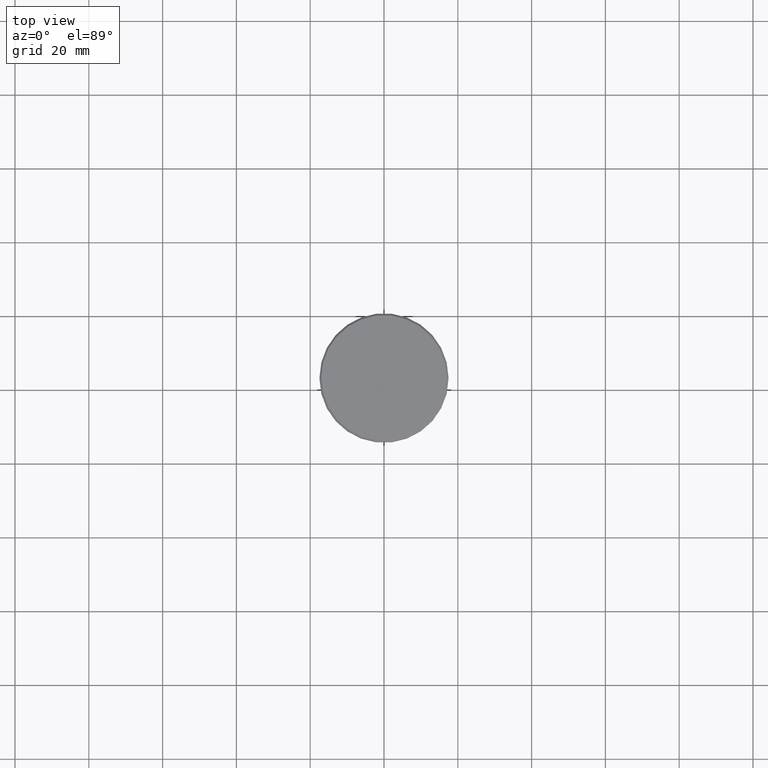
[diagram: clean part render]
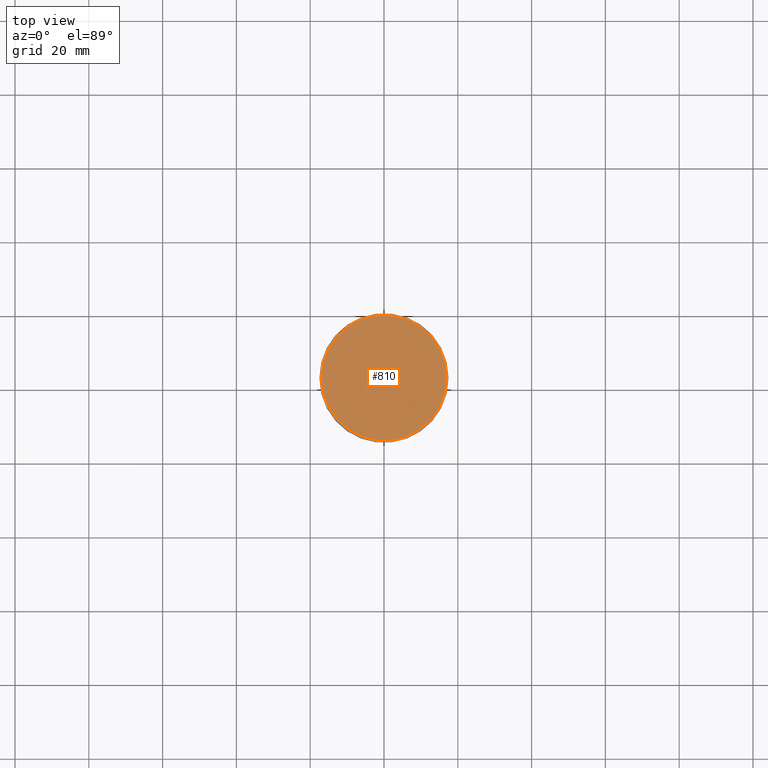
[diagram: same view with one face highlighted and labeled with its STEP entity id]
A machine part, top view. The second image highlights one B-rep face of the part: STEP entity #810.
In plain terms, the highlighted planar face has unit normal (0, -0, 1).
Its self-contained STEP definition (entity closure, byte-faithful):
#23 = DIRECTION ( 'NONE',  ( -0.000000000000000000, -0.000000000000000000, 1.000000000000000000 ) ) ;
#44 = DIRECTION ( 'NONE',  ( 1.000000000000000000, 0.000000000000000000, 0.000000000000000000 ) ) ;
#107 = DIRECTION ( 'NONE',  ( -0.000000000000000000, -0.000000000000000000, 1.000000000000000000 ) ) ;
#123 = CARTESIAN_POINT ( 'NONE',  ( -16.99999999999998579, 0.000000000000000000, 0.000000000000000000 ) ) ;
#172 = FACE_OUTER_BOUND ( 'NONE', #763, .T. ) ;
#295 = AXIS2_PLACEMENT_3D ( 'NONE', #901, #955, #44 ) ;
#391 = CIRCLE ( 'NONE', #985, 16.99999999999998579 ) ;
#486 = CIRCLE ( 'NONE', #833, 16.99999999999998579 ) ;
#497 = CARTESIAN_POINT ( 'NONE',  ( 0.000000000000000000, 0.000000000000000000, 0.000000000000000000 ) ) ;
#503 = VERTEX_POINT ( 'NONE', #123 ) ;
#528 = PLANE ( 'NONE',  #295 ) ;
#587 = CARTESIAN_POINT ( 'NONE',  ( 0.000000000000000000, 0.000000000000000000, 0.000000000000000000 ) ) ;
#619 = CARTESIAN_POINT ( 'NONE',  ( 16.99999999999998579, 2.112515728529183278E-15, 0.000000000000000000 ) ) ;
#634 = ORIENTED_EDGE ( 'NONE', *, *, #932, .T. ) ;
#657 = DIRECTION ( 'NONE',  ( 1.000000000000000000, 0.000000000000000000, 0.000000000000000000 ) ) ;
#763 = EDGE_LOOP ( 'NONE', ( #634, #837 ) ) ;
#810 = ADVANCED_FACE ( 'NONE', ( #172 ), #528, .T. ) ;
#833 = AXIS2_PLACEMENT_3D ( 'NONE', #587, #23, #916 ) ;
#837 = ORIENTED_EDGE ( 'NONE', *, *, #871, .T. ) ;
#871 = EDGE_CURVE ( 'NONE', #1010, #503, #391, .T. ) ;
#901 = CARTESIAN_POINT ( 'NONE',  ( 0.000000000000000000, 0.000000000000000000, 0.000000000000000000 ) ) ;
#916 = DIRECTION ( 'NONE',  ( 1.000000000000000000, 0.000000000000000000, 0.000000000000000000 ) ) ;
#932 = EDGE_CURVE ( 'NONE', #503, #1010, #486, .T. ) ;
#955 = DIRECTION ( 'NONE',  ( 0.000000000000000000, -0.000000000000000000, 1.000000000000000000 ) ) ;
#985 = AXIS2_PLACEMENT_3D ( 'NONE', #497, #107, #657 ) ;
#1010 = VERTEX_POINT ( 'NONE', #619 ) ;